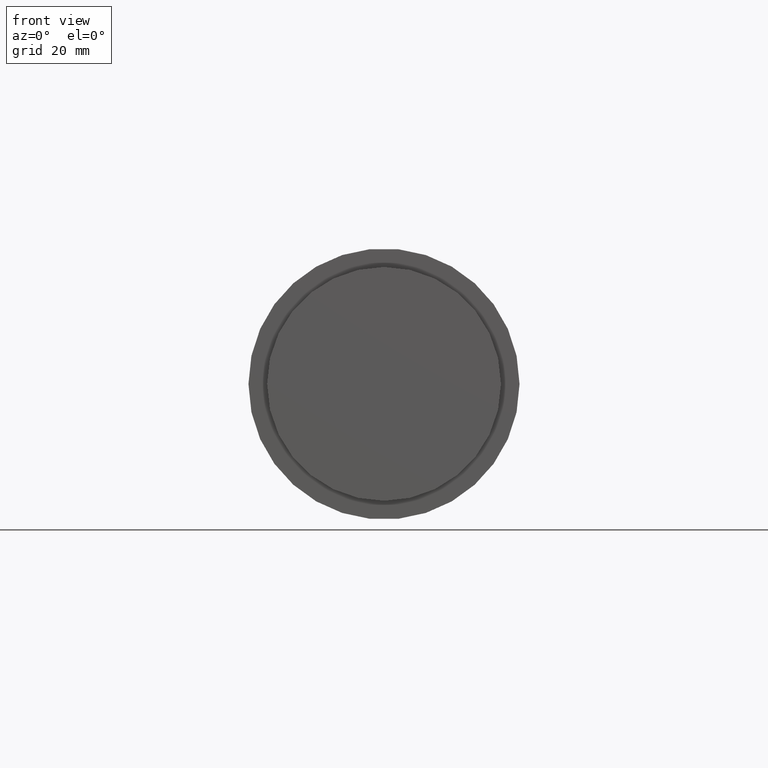
[diagram: clean part render]
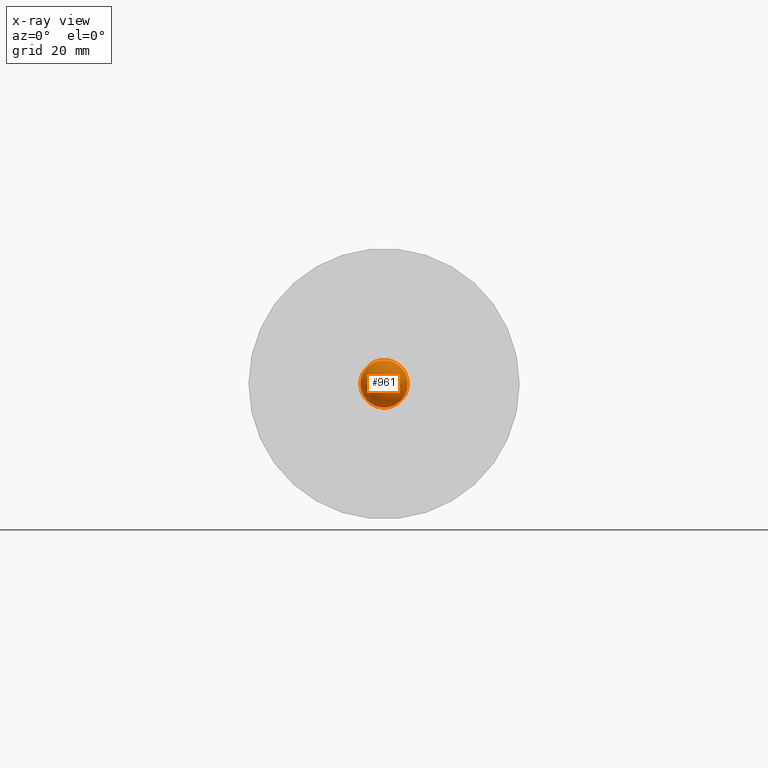
[diagram: x-ray — body ghosted, one internal face saturated and labeled with its STEP entity id]
A machine part, front view, then the same camera in x-ray: the body is ghosted and one INTERNAL B-rep face — a face not visible from any outside direction — is saturated and labeled: STEP entity #961.
In plain terms, the highlighted spherical surface has radius 7 mm.
Its self-contained STEP definition (entity closure, byte-faithful):
#141=SPHERICAL_SURFACE('',#1068,7.);
#144=FACE_OUTER_BOUND('',#202,.T.);
#202=EDGE_LOOP('',(#652,#653,#654,#655,#656));
#316=CIRCLE('',#1065,7.);
#317=CIRCLE('',#1066,7.);
#318=CIRCLE('',#1067,7.);
#319=CIRCLE('',#1069,7.);
#389=VERTEX_POINT('',#1502);
#390=VERTEX_POINT('',#1504);
#391=VERTEX_POINT('',#1506);
#392=VERTEX_POINT('',#1510);
#495=EDGE_CURVE('',#389,#390,#316,.T.);
#496=EDGE_CURVE('',#390,#391,#317,.T.);
#497=EDGE_CURVE('',#391,#389,#318,.T.);
#498=EDGE_CURVE('',#392,#391,#319,.T.);
#652=ORIENTED_EDGE('',*,*,#496,.F.);
#653=ORIENTED_EDGE('',*,*,#495,.F.);
#654=ORIENTED_EDGE('',*,*,#497,.F.);
#655=ORIENTED_EDGE('',*,*,#498,.F.);
#656=ORIENTED_EDGE('',*,*,#498,.T.);
#961=ADVANCED_FACE('',(#144),#141,.F.);
#1065=AXIS2_PLACEMENT_3D('',#1505,#1207,#1208);
#1066=AXIS2_PLACEMENT_3D('',#1507,#1209,#1210);
#1067=AXIS2_PLACEMENT_3D('',#1508,#1211,#1212);
#1068=AXIS2_PLACEMENT_3D('',#1509,#1213,#1214);
#1069=AXIS2_PLACEMENT_3D('',#1511,#1215,#1216);
#1207=DIRECTION('center_axis',(0.,-1.,0.));
#1208=DIRECTION('ref_axis',(1.,0.,0.));
#1209=DIRECTION('center_axis',(0.,-1.,0.));
#1210=DIRECTION('ref_axis',(1.,0.,0.));
#1211=DIRECTION('center_axis',(0.,-1.,0.));
#1212=DIRECTION('ref_axis',(1.,0.,0.));
#1213=DIRECTION('center_axis',(0.,1.,-6.12323399573677E-17));
#1214=DIRECTION('ref_axis',(0.,0.,-1.));
#1215=DIRECTION('center_axis',(-1.,0.,1.22464679914737E-16));
#1216=DIRECTION('ref_axis',(1.22464679914737E-16,0.,1.));
#1502=CARTESIAN_POINT('',(-7.,20.,-8.57252759403147E-16));
#1504=CARTESIAN_POINT('',(7.,20.,0.));
#1505=CARTESIAN_POINT('Origin',(0.,20.,0.));
#1506=CARTESIAN_POINT('',(2.32616309149905E-13,20.,7.));
#1507=CARTESIAN_POINT('Origin',(0.,20.,0.));
#1508=CARTESIAN_POINT('Origin',(0.,20.,0.));
#1509=CARTESIAN_POINT('Origin',(2.31759056390501E-13,19.9999999999998,0.));
#1510=CARTESIAN_POINT('',(2.31759056390501E-13,12.9999999999998,4.28626379701574E-16));
#1511=CARTESIAN_POINT('Origin',(2.31759056390501E-13,19.9999999999998,0.));